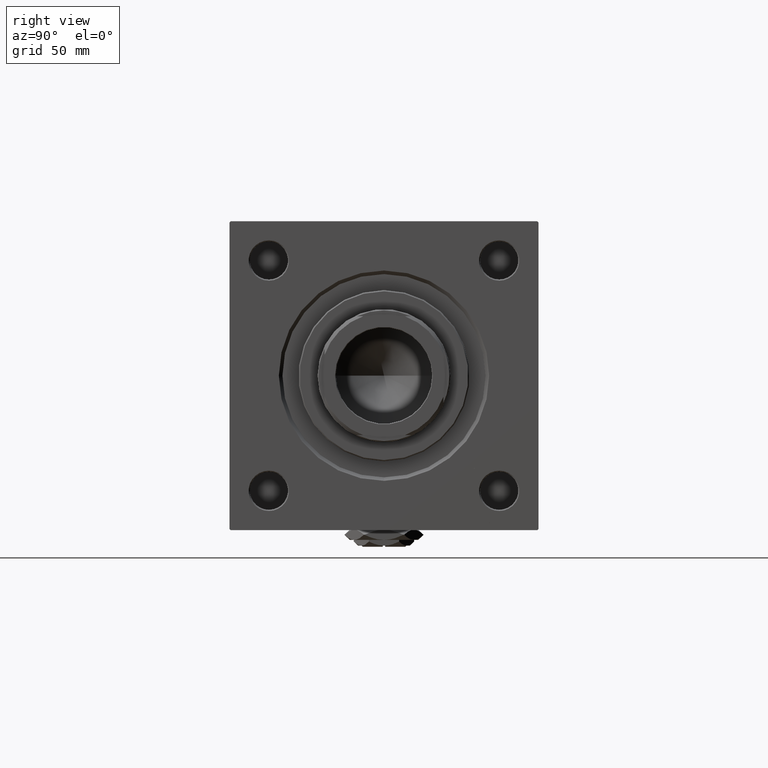
[diagram: clean part render]
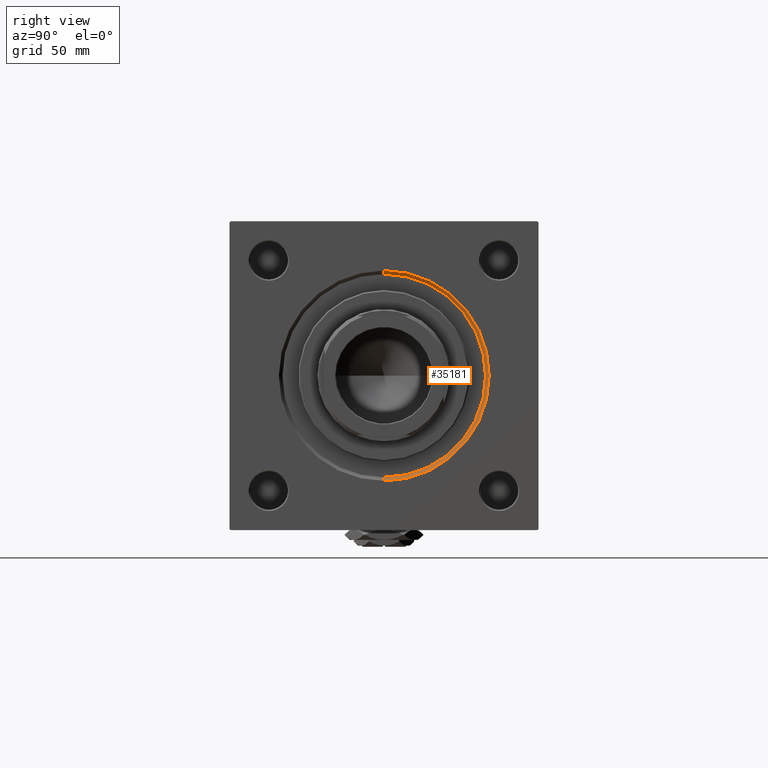
[diagram: same view with one face highlighted and labeled with its STEP entity id]
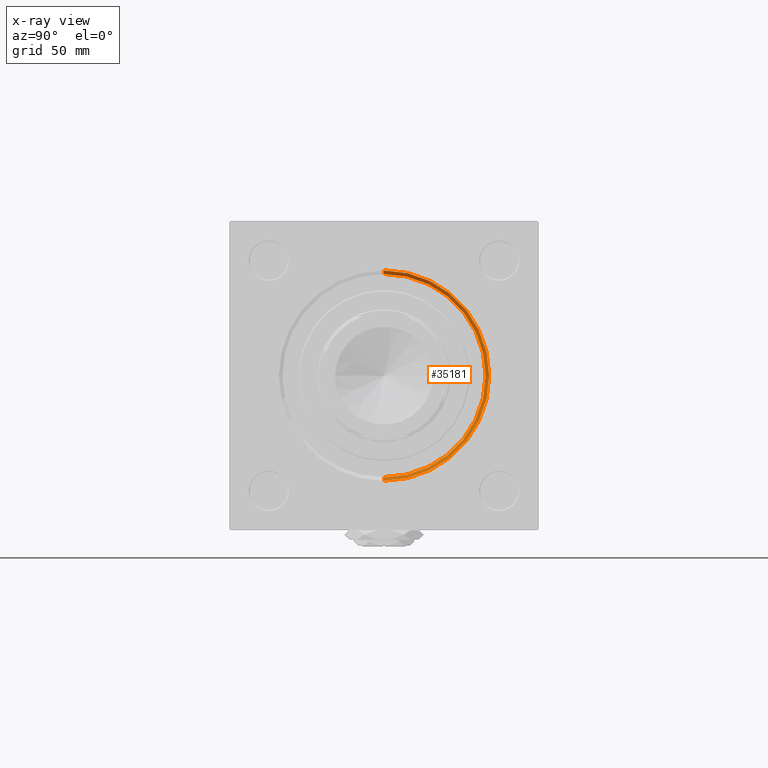
[diagram: x-ray of the same camera — body ghosted, the highlighted face saturated]
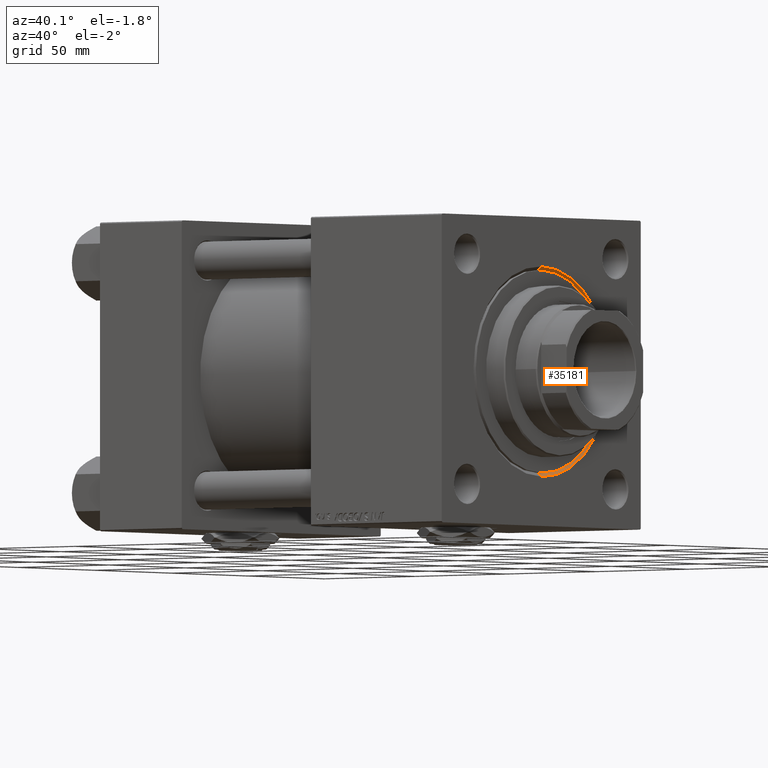
[diagram: same view with one face highlighted and labeled with its STEP entity id]
A machine part, right view. The second image highlights one B-rep face of the part: STEP entity #35181.
The next image is the same camera in x-ray: the body ghosted, the highlighted face saturated — about 0% of this face is hidden behind the body in this view.
A second angle (auxiliary view) of the same face is appended — the face is thin or edge-on in the first view.
In plain terms, the highlighted conical surface has half-angle 45 deg.
Its self-contained STEP definition (entity closure, byte-faithful):
#404 = LINE ( 'NONE', #44741, #10818 ) ;
#2355 = VERTEX_POINT ( 'NONE', #10004 ) ;
#2818 = CARTESIAN_POINT ( 'NONE',  ( 188.0000000000000000, 0.000000000000000000, 0.000000000000000000 ) ) ;
#4085 = DIRECTION ( 'NONE',  ( 0.000000000000000000, 0.000000000000000000, 1.000000000000000000 ) ) ;
#4352 = DIRECTION ( 'NONE',  ( 1.000000000000000000, 0.000000000000000000, 0.000000000000000000 ) ) ;
#7979 = CONICAL_SURFACE ( 'NONE', #25025, 42.75000000000000000, 0.7853981633974506105 ) ;
#10004 = CARTESIAN_POINT ( 'NONE',  ( 188.0000000000000000, 5.419062086227035828E-15, 44.24999999999998579 ) ) ;
#10068 = DIRECTION ( 'NONE',  ( 0.000000000000000000, 0.000000000000000000, 1.000000000000000000 ) ) ;
#10818 = VECTOR ( 'NONE', #24973, 1000.000000000000114 ) ;
#13922 = AXIS2_PLACEMENT_3D ( 'NONE', #40682, #4352, #4085 ) ;
#15068 = CARTESIAN_POINT ( 'NONE',  ( 188.0000000000000000, 0.000000000000000000, -44.24999999999998579 ) ) ;
#15440 = CARTESIAN_POINT ( 'NONE',  ( 186.5000000000000284, 0.000000000000000000, -42.75000000000000000 ) ) ;
#15903 = DIRECTION ( 'NONE',  ( 0.7071067811865459074, 0.000000000000000000, -0.7071067811865491270 ) ) ;
#17346 = VERTEX_POINT ( 'NONE', #29358 ) ;
#18370 = VERTEX_POINT ( 'NONE', #15440 ) ;
#18542 = AXIS2_PLACEMENT_3D ( 'NONE', #2818, #35401, #10068 ) ;
#20370 = DIRECTION ( 'NONE',  ( 0.000000000000000000, 0.000000000000000000, -1.000000000000000000 ) ) ;
#20489 = ORIENTED_EDGE ( 'NONE', *, *, #48019, .F. ) ;
#21724 = EDGE_CURVE ( 'NONE', #18370, #17346, #30105, .T. ) ;
#23883 = CARTESIAN_POINT ( 'NONE',  ( 186.5000000000000284, 0.000000000000000000, -42.75000000000000000 ) ) ;
#24754 = ORIENTED_EDGE ( 'NONE', *, *, #34125, .T. ) ;
#24973 = DIRECTION ( 'NONE',  ( 0.7071067811865459074, 8.659560562354953812E-17, 0.7071067811865491270 ) ) ;
#25025 = AXIS2_PLACEMENT_3D ( 'NONE', #52145, #51882, #20370 ) ;
#27829 = FACE_OUTER_BOUND ( 'NONE', #49323, .T. ) ;
#29358 = CARTESIAN_POINT ( 'NONE',  ( 186.5000000000000284, 5.235365066354935472E-15, 42.75000000000000000 ) ) ;
#30105 = CIRCLE ( 'NONE', #13922, 42.75000000000000000 ) ;
#30912 = VERTEX_POINT ( 'NONE', #15068 ) ;
#34125 = EDGE_CURVE ( 'NONE', #18370, #30912, #39631, .T. ) ;
#35181 = ADVANCED_FACE ( 'NONE', ( #27829 ), #7979, .F. ) ;
#35401 = DIRECTION ( 'NONE',  ( -1.000000000000000000, 0.000000000000000000, -0.000000000000000000 ) ) ;
#38582 = ORIENTED_EDGE ( 'NONE', *, *, #47073, .F. ) ;
#39631 = LINE ( 'NONE', #23883, #50563 ) ;
#40682 = CARTESIAN_POINT ( 'NONE',  ( 186.5000000000000284, 0.000000000000000000, 0.000000000000000000 ) ) ;
#44741 = CARTESIAN_POINT ( 'NONE',  ( 186.5000000000000284, 5.235365066354935472E-15, 42.75000000000000000 ) ) ;
#45269 = ORIENTED_EDGE ( 'NONE', *, *, #21724, .F. ) ;
#45833 = CIRCLE ( 'NONE', #18542, 44.24999999999998579 ) ;
#47073 = EDGE_CURVE ( 'NONE', #17346, #2355, #404, .T. ) ;
#48019 = EDGE_CURVE ( 'NONE', #2355, #30912, #45833, .T. ) ;
#49323 = EDGE_LOOP ( 'NONE', ( #38582, #45269, #24754, #20489 ) ) ;
#50563 = VECTOR ( 'NONE', #15903, 1000.000000000000114 ) ;
#51882 = DIRECTION ( 'NONE',  ( 1.000000000000000000, 0.000000000000000000, 0.000000000000000000 ) ) ;
#52145 = CARTESIAN_POINT ( 'NONE',  ( 186.5000000000000284, 0.000000000000000000, 0.000000000000000000 ) ) ;